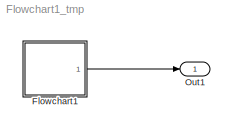
MODEL Flowchart1_tmp
KIND model
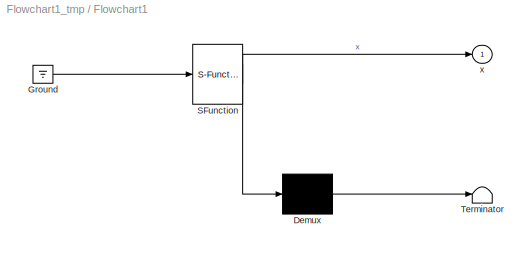
BLOCK [SubSystem] Flowchart1
  ErrorFcn = Stateflow.Translate.translate
  PermitHierarchicalResolution = ParametersOnly
  Ports = [0, 1]
  RequestExecContextInheritance = off
  SFBlockType = Chart
  SID = 2
  TreatAsAtomicUnit = on
  Variant = off
BLOCK [Demux] Flowchart1/ Demux 
  Outputs = 1
  Ports = [1, 1]
  SID = 2::11
BLOCK [Ground] Flowchart1/ Ground 
  SID = 2::13
BLOCK [S-Function] Flowchart1/ SFunction 
  EnableBusSupport = off
  FunctionName = sf_sfun
  PortCounts = [1 2]
  Ports = [1, 2]
  SFunctionDeploymentMode = off
  SID = 2::10
  Tag = Stateflow S-Function Flowchart1_tmp 1
BLOCK [Terminator] Flowchart1/ Terminator 
  SID = 2::12
BLOCK [Outport] Flowchart1/x
  IconDisplay = Port number
  SID = 2::5
BLOCK [Outport] Out1
  IconDisplay = Port number
  SID = 3
LINE Flowchart1/ Demux :1 -> Flowchart1/ Terminator :1
LINE Flowchart1/ Ground :1 -> Flowchart1/ SFunction :1
LINE Flowchart1/ SFunction :1 -> Flowchart1/ Demux :1
LINE Flowchart1/ SFunction :2 -> Flowchart1/x:1
LINE Flowchart1:1 -> Out1:1
CHART Flowchart1 states=1 transitions=1
  STATE_LABEL 'A'
